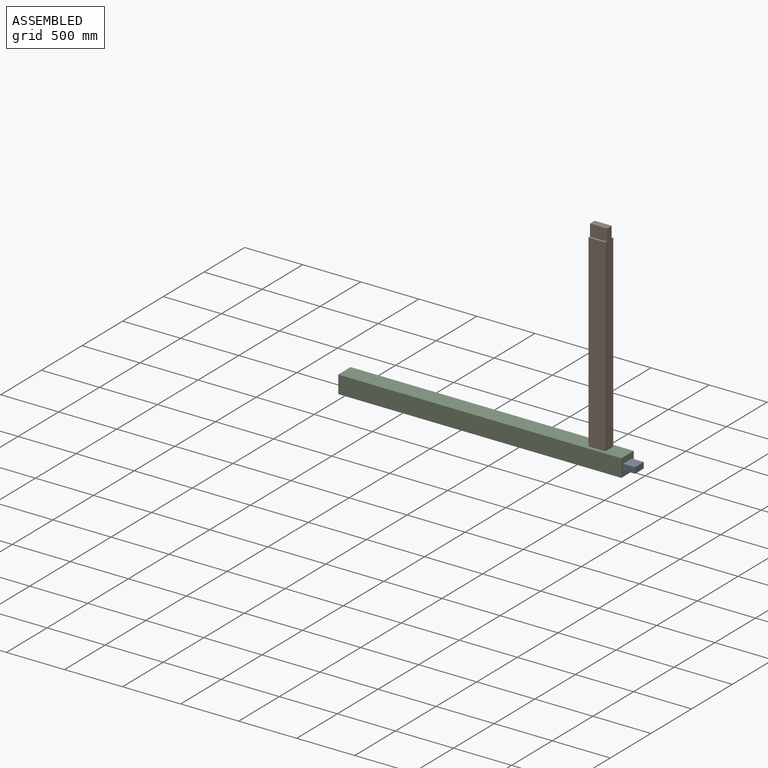
[diagram: assembled view]
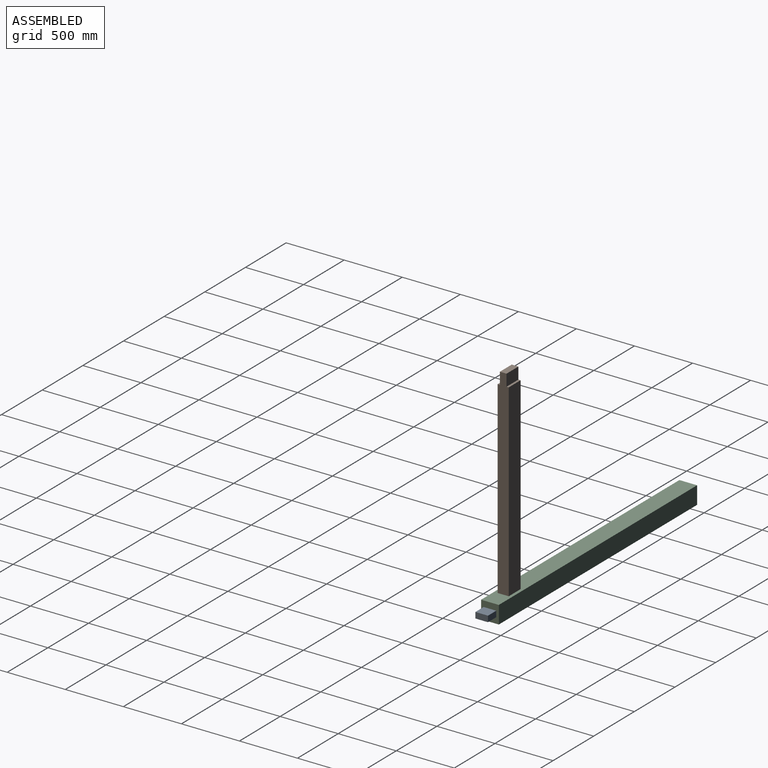
[diagram: assembled view, second angle]
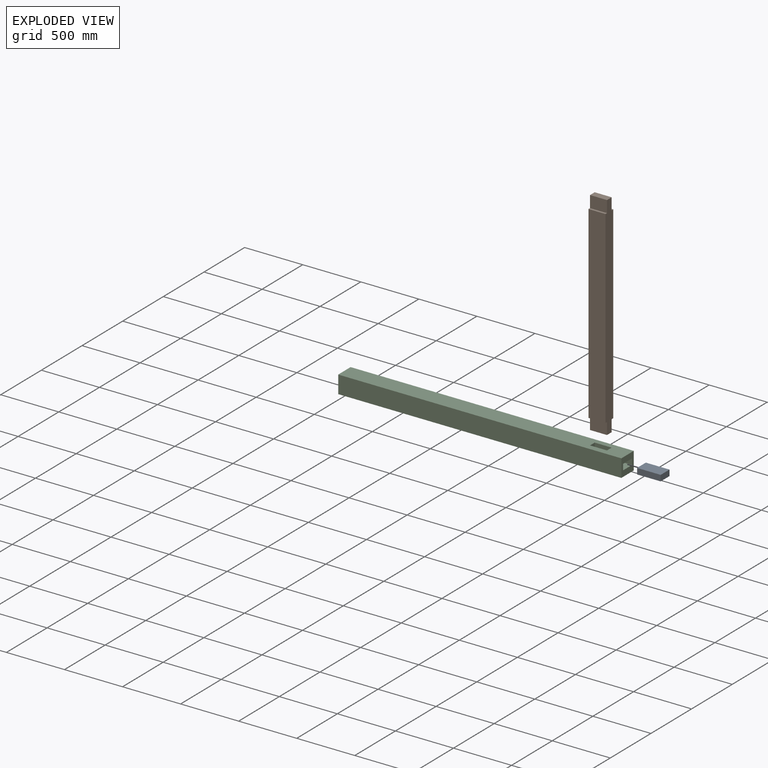
[diagram: exploded view]
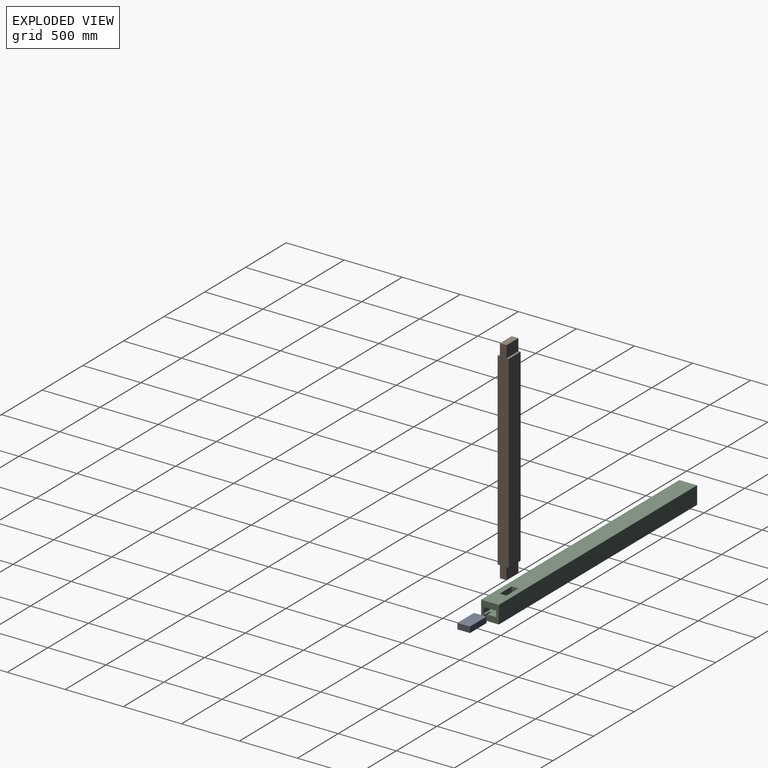
[diagram: exploded view, second angle]
ASSEMBLY  parts=3 mates=2
PART A: 6 faces, bbox 108x50.8x203.2 mm
  f0: plane 203.2x107.95mm, normal (0,-1,0), area 21935.4mm2, adj f1,f3,f4,f5
  f1: plane 203.2x50.8mm, normal (1,0,0), area 10322.6mm2, adj f0,f2,f4,f5
  f2: plane 203.2x107.95mm, normal (0,1,0), area 21935.4mm2, adj f1,f3,f4,f5
  f3: plane 203.2x50.8mm, normal (-1,0,0), area 10322.6mm2, adj f0,f2,f4,f5
  f4: plane 107.95x50.8mm, normal (0,0,1), area 5483.9mm2, adj f0,f1,f2,f3
  f5: plane 107.95x50.8mm, normal (0,0,-1), area 5483.9mm2, adj f0,f1,f2,f3
PART B: 14 faces, bbox 146.1x95.3x1828.8 mm
  f0: plane 1828.8x95.25mm, normal (-1,0,0), area 166451.3mm2, adj f1,f2,f4,f5,f6,f7,f8,f9
  f1: plane 146.05x57.15mm, normal (0,0,-1), area 8346.8mm2, adj f0,f3,f10,f12
  f2: plane 1625.6x146.05mm, normal (0,-1,0), area 237418.9mm2, adj f0,f3,f7,f13
  f3: plane 1828.8x95.25mm, normal (1,0,0), area 166451.3mm2, adj f1,f2,f4,f5,f6,f7,f8,f9
  f4: plane 1625.6x146.05mm, normal (0,1,0), area 237418.9mm2, adj f0,f3,f9,f11
  f5: plane 146.05x57.15mm, normal (0,0,1), area 8346.8mm2, adj f0,f3,f6,f8
  f6: plane 146.05x101.6mm, normal (0,-1,0), area 14838.7mm2, adj f0,f3,f5,f7
  f7: plane 146.05x19.05mm, normal (0,0,1), area 2782.3mm2, adj f0,f2,f3,f6
  f8: plane 146.05x101.6mm, normal (0,1,0), area 14838.7mm2, adj f0,f3,f5,f9
  f9: plane 146.05x19.05mm, normal (0,0,1), area 2782.3mm2, adj f0,f3,f4,f8
  f10: plane 146.05x101.6mm, normal (0,1,0), area 14838.7mm2, adj f0,f1,f3,f11
  f11: plane 146.05x19.05mm, normal (0,0,-1), area 2782.3mm2, adj f0,f3,f4,f10
  f12: plane 146.05x101.6mm, normal (0,-1,0), area 14838.7mm2, adj f0,f1,f3,f13
  f13: plane 146.05x19.05mm, normal (0,0,-1), area 2782.3mm2, adj f0,f2,f3,f12
PART C: 16 faces, bbox 152.4x152.4x2438.4 mm
  f0: plane 152.4x152.4mm, normal (0,0,1), area 17741.9mm2, adj f1,f2,f3,f4,f11,f12,f13,f14
  f1: plane 2438.4x152.4mm, normal (0,-1,0), area 363265.4mm2, adj f0,f2,f4,f5,f6,f7,f8,f9
  f2: plane 2438.4x152.4mm, normal (1,0,0), area 371612.2mm2, adj f0,f1,f3,f5
  f3: plane 2438.4x152.4mm, normal (0,1,0), area 371612.2mm2, adj f0,f2,f4,f5
  f4: plane 2438.4x152.4mm, normal (-1,0,0), area 371612.2mm2, adj f0,f1,f3,f5
  f5: plane 152.4x152.4mm, normal (0,0,-1), area 23225.8mm2, adj f1,f2,f3,f4
  f6: plane 101.6x57.15mm, normal (0,0,1), area 5806.4mm2, adj f1,f7,f9,f10
  f7: plane 146.05x101.6mm, normal (-1,0,0), area 14838.7mm2, adj f1,f6,f8,f10
  f8: plane 101.6x57.15mm, normal (0,0,-1), area 5806.4mm2, adj f1,f7,f9,f10
  f9: plane 146.05x101.6mm, normal (1,0,0), area 14838.7mm2, adj f1,f6,f8,f10
  f10: plane 146.05x57.15mm, normal (0,-1,0), area 8346.8mm2, adj f6,f7,f8,f9
  f11: plane 107.95x101.6mm, normal (0,1,0), area 10967.7mm2, adj f0,f12,f14,f15
  f12: plane 101.6x50.8mm, normal (-1,0,0), area 5161.3mm2, adj f0,f11,f13,f15
  f13: plane 107.95x101.6mm, normal (0,-1,0), area 10967.7mm2, adj f0,f12,f14,f15
  f14: plane 101.6x50.8mm, normal (1,0,0), area 5161.3mm2, adj f0,f11,f13,f15
  f15: plane 107.95x50.8mm, normal (0,0,1), area 5483.9mm2, adj f11,f12,f13,f14
PLACE A rot(axis=(-0.58,0.58,-0.58),120deg) t=(-1159.79,-133.81,183.91)mm
PLACE B t=(-1289.96,-131.09,158.51)mm
PLACE C rot(axis=(-0.58,0.58,-0.58),120deg) t=(-3496.59,-133.81,183.91)mm
MATE fastened C.f15 <-> A.f5  axis (1,0,0) through (-1159.79,-133.81,183.91)mm
MATE fastened C.f10 <-> B.f1  axis (0,0,1) through (-1289.96,-131.09,158.51)mm
